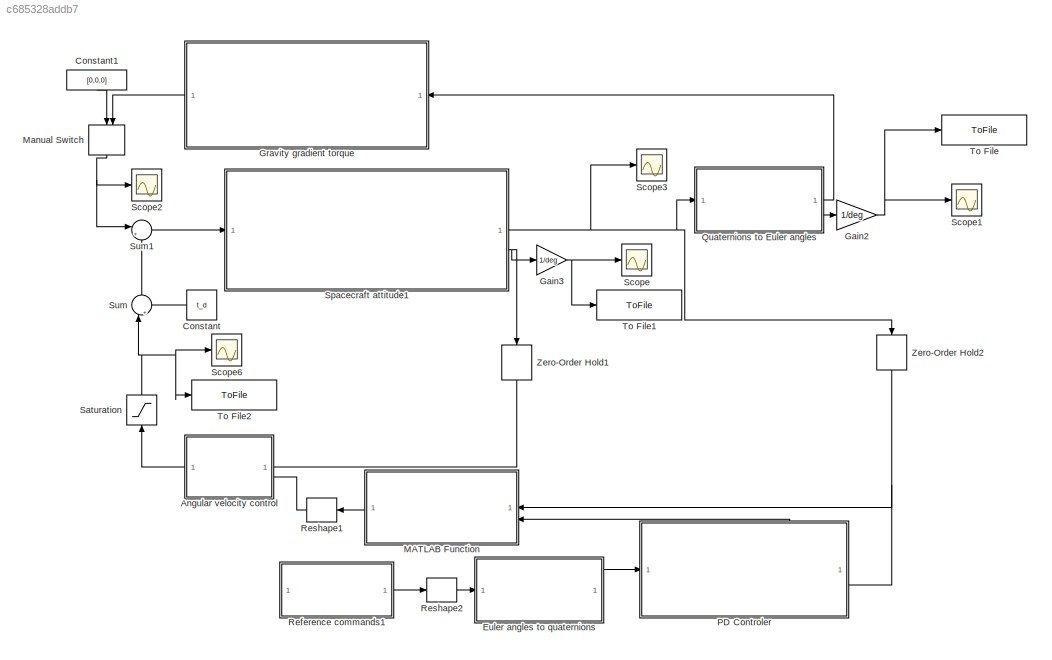
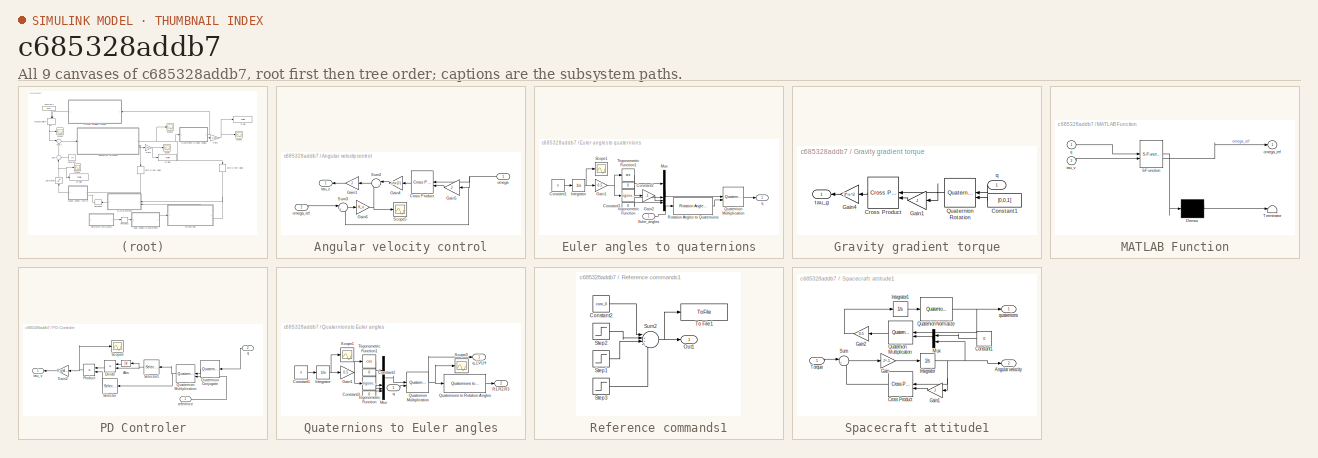
[diagram: thumbnail index - all 9 canvases of the model, root first then tree order]
MODEL slx_c685328addb7
KIND model
CONFIG AbsTol = 1e-6
CONFIG EnableMultiTasking = off
CONFIG FixedStep = 0.1
CONFIG MaxStep = auto
CONFIG MinStep = auto
CONFIG RelTol = 1e-6
CONFIG SampleTimeConstraint = Unconstrained
CONFIG SolverName = FixedStepAuto
CONFIG StartTime = 0.0
CONFIG StopTime = 1500
BLOCK [SubSystem] Angular velocity control
  PortSchema = {"entries":[{"content":{"sides":[{"content":{"connectorIds":["Out1"]},"type":"ConnectorPlacement.EquallySpacedRectSide","uuid":"1a2144e1-4a42-45d8-bf34-f3ce2743180d"},{"content":{"connectorIds":["In1","In2"],"side":"RIGHT"},"type":"ConnectorPlacement.EquallySpacedRectSide","uuid":"d3edec84-6c6c-4d61-a4e7-efc1d8cfdc8e"},{"content":{"side":"TOP"},"type":"ConnectorPlacement.EquallySpacedRectSide","uu...<+228ch>
BLOCK [Reference] Angular velocity control/Cross Product  REF=matrix_library/Cross Product
  LibrarySourceBlock = simulink/Matrix\nOperations/Cross Product
  SourceBlock = matrix_library/Cross Product
  SourceType = CrossProduct
BLOCK [Gain] Angular velocity control/Gain1
  Gain = J
  Multiplication = Matrix(K*u)
BLOCK [Gain] Angular velocity control/Gain4
  Gain = -inv(J)
  Multiplication = Matrix(K*u)
BLOCK [Gain] Angular velocity control/Gain5
  Gain = J
  Multiplication = Matrix(K*u)
BLOCK [Gain] Angular velocity control/Gain6
  Gain = K_o
  Multiplication = Matrix(K*u)
BLOCK [Scope] Angular velocity control/Scope5
  Floating = off
  NumInputPorts = 1
  ScopeSpecificationString = Simulink.scopes.TimeScopeBlockCfg('CurrentConfiguration', extmgr.ConfigurationSet(extmgr.Configuration('Core','General UI',true),extmgr.Configuration('Core','Source UI',true),extmgr.Configuration('Sources','WiredSimulink',true,'DataLoggingVariableName','ScopeData3'),extmgr.Configuration('Visuals','Time Domain',true,'SerializedDisplays',{struct('MinYLimReal','-0.05542','MaxYLimReal','0.05641','YLab...<+1867ch>
BLOCK [Sum] Angular velocity control/Sum2
  Inputs = |-+
BLOCK [Sum] Angular velocity control/Sum3
  Inputs = |+-
BLOCK [Inport] Angular velocity control/omega
BLOCK [Inport] Angular velocity control/omega_ref
  Port = 2
BLOCK [Outport] Angular velocity control/tau_c
BLOCK [Constant] Constant
  Value = t_d
BLOCK [Constant] Constant1
  NameLocation = right
  Value = [0,0,0]
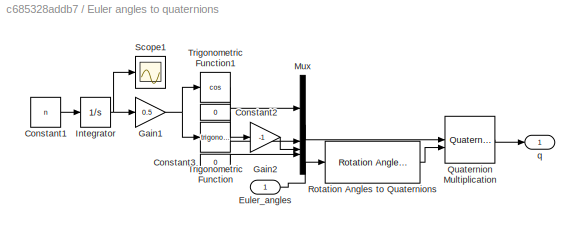
BLOCK [SubSystem] Euler angles to quaternions
BLOCK [Constant] Euler angles to quaternions/Constant1
  Value = n
BLOCK [Constant] Euler angles to quaternions/Constant2
  Value = 0
BLOCK [Constant] Euler angles to quaternions/Constant3
  Value = 0
BLOCK [Inport] Euler angles to quaternions/Euler_angles
BLOCK [Gain] Euler angles to quaternions/Gain1
  Gain = 0.5
  Multiplication = Matrix(K*u)
BLOCK [Gain] Euler angles to quaternions/Gain2
  Gain = -1
  Multiplication = Matrix(K*u)
BLOCK [Integrator] Euler angles to quaternions/Integrator
BLOCK [Mux] Euler angles to quaternions/Mux
  DisplayOption = bar
BLOCK [Reference] Euler angles to quaternions/Quaternion Multiplication  REF=aerolibutil/Quaternion
Multiplication
  SourceBlock = aerolibutil/Quaternion\nMultiplication
  SourceType = Quaternion Multiplication
BLOCK [Reference] Euler angles to quaternions/Rotation Angles to Quaternions  REF=sharedtransform/Rotation Angles to Quaternions
  AttributesFormatString = Rotation Order: %<rotationOrder>
  LibrarySourceBlock = aerolibtransform2/Rotation Angles to Quaternions
  SourceBlock = sharedtransform/Rotation Angles to Quaternions
  SourceType = Ang2Quat
BLOCK [Scope] Euler angles to quaternions/Scope1
  Floating = off
  NumInputPorts = 1
  ScopeSpecificationString = Simulink.scopes.TimeScopeBlockCfg('CurrentConfiguration', extmgr.ConfigurationSet(extmgr.Configuration('Core','General UI',true),extmgr.Configuration('Core','Source UI',true),extmgr.Configuration('Sources','WiredSimulink',true,'DataLoggingVariableName','ScopeData6'),extmgr.Configuration('Visuals','Time Domain',true,'SerializedDisplays',{struct('MinYLimReal','-0.19879','MaxYLimReal','1.78915','YLab...<+1783ch>
BLOCK [Trigonometry] Euler angles to quaternions/Trigonometric Function
BLOCK [Trigonometry] Euler angles to quaternions/Trigonometric Function1
  Operator = cos
BLOCK [Outport] Euler angles to quaternions/q
BLOCK [Gain] Gain2
  Gain = 1/deg
  Multiplication = Matrix(K*u)
BLOCK [Gain] Gain3
  Gain = 1/deg
  Multiplication = Matrix(K*u)
BLOCK [SubSystem] Gravity gradient torque
BLOCK [Constant] Gravity gradient torque/Constant1
  Value = [0,0,1]
BLOCK [Reference] Gravity gradient torque/Cross Product  REF=matrix_library/Cross Product
  LibrarySourceBlock = simulink/Matrix\nOperations/Cross Product
  SourceBlock = matrix_library/Cross Product
  SourceType = CrossProduct
BLOCK [Gain] Gravity gradient torque/Gain1
  Gain = J
  Multiplication = Matrix(K*u)
BLOCK [Gain] Gravity gradient torque/Gain4
  Gain = 3*n.^2
  Multiplication = Matrix(K*u)
BLOCK [Reference] Gravity gradient torque/Quaternion Rotation  REF=aerolibutil/Quaternion
Rotation
  SourceBlock = aerolibutil/Quaternion\nRotation
  SourceType = Quaternion Rotation
BLOCK [Inport] Gravity gradient torque/q
  NameLocation = top
BLOCK [Outport] Gravity gradient torque/tau_g
BLOCK [SubSystem] MATLAB Function
  ErrorFcn = Stateflow.Translate.translate
  PermitHierarchicalResolution = ExplicitOnly
  SFBlockType = MATLAB Function
  TreatAsAtomicUnit = on
BLOCK [Demux] MATLAB Function/ Demux 
  Outputs = 1
BLOCK [S-Function] MATLAB Function/ SFunction 
  EnableBusSupport = on
  FunctionName = sf_sfun
  PortCounts = [2 2]
  SFcnIsStateOwnerBlock = off
  SFunctionDeploymentMode = off
  Tag = Stateflow S-Function 2
BLOCK [Terminator] MATLAB Function/ Terminator 
BLOCK [Outport] MATLAB Function/omega_ref
BLOCK [Inport] MATLAB Function/q
BLOCK [Inport] MATLAB Function/tau_v
  Port = 2
BLOCK [ManualSwitch] Manual Switch
  CurrentSetting = 0
  NameLocation = left
BLOCK [SubSystem] PD Controler
  PortSchema = {"entries":[{"content":{"sides":[{"content":{"connectorIds":["Out1","In1"]},"type":"ConnectorPlacement.EquallySpacedRectSide","uuid":"abb5c05f-55a7-4b23-99fb-718b12e347b5"},{"content":{"connectorIds":["In2"],"side":"RIGHT"},"type":"ConnectorPlacement.EquallySpacedRectSide","uuid":"ecafc2a8-a004-41b4-9c63-c5f60123672e"},{"content":{"side":"TOP"},"type":"ConnectorPlacement.EquallySpacedRectSide","uu...<+228ch>
BLOCK [Abs] PD Controler/Abs
  SaturateOnIntegerOverflow = off
BLOCK [Product] PD Controler/Divide
  Inputs = */
BLOCK [Gain] PD Controler/Gain2
  Gain = K_q_ndi_tss
  Multiplication = Matrix(K*u)
BLOCK [Product] PD Controler/Product
BLOCK [Reference] PD Controler/Quaternion Conjugate  REF=aerolibutil/Quaternion
Conjugate
  SourceBlock = aerolibutil/Quaternion\nConjugate
  SourceType = Quaternion Conjugate
BLOCK [Reference] PD Controler/Quaternion Multiplication  REF=aerolibutil/Quaternion
Multiplication
  SourceBlock = aerolibutil/Quaternion\nMultiplication
  SourceType = Quaternion Multiplication
BLOCK [Scope] PD Controler/Scope6
  Floating = off
  NumInputPorts = 1
  ScopeSpecificationString = Simulink.scopes.TimeScopeBlockCfg('CurrentConfiguration', extmgr.ConfigurationSet(extmgr.Configuration('Core','General UI',true),extmgr.Configuration('Core','Source UI',true),extmgr.Configuration('Sources','WiredSimulink',true,'DataLoggingVariableName','ScopeData2'),extmgr.Configuration('Visuals','Time Domain',true,'SerializedDisplays',{struct('MinYLimReal','-1.21261','MaxYLimReal','1.2136','YLabe...<+1882ch>
BLOCK [Selector] PD Controler/Selector
  IndexOptions = Index vector (dialog)
  Indices = [2 3 4]
  InputPortWidth = 4
  NameLocation = top
  OutputSizes = 1
BLOCK [Selector] PD Controler/Selector1
  IndexOptions = Index vector (dialog)
  Indices = [1]
  InputPortWidth = 4
  NameLocation = top
  OutputSizes = 1
BLOCK [Inport] PD Controler/q
  Port = 2
BLOCK [Inport] PD Controler/reference
BLOCK [Outport] PD Controler/tau_v
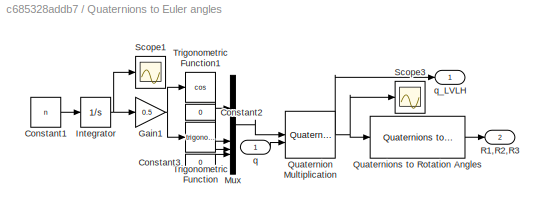
BLOCK [SubSystem] Quaternions to Euler angles
BLOCK [Constant] Quaternions to Euler angles/Constant1
  Value = n
BLOCK [Constant] Quaternions to Euler angles/Constant2
  Value = 0
BLOCK [Constant] Quaternions to Euler angles/Constant3
  Value = 0
BLOCK [Gain] Quaternions to Euler angles/Gain1
  Gain = 0.5
  Multiplication = Matrix(K*u)
BLOCK [Integrator] Quaternions to Euler angles/Integrator
BLOCK [Mux] Quaternions to Euler angles/Mux
  DisplayOption = bar
BLOCK [Reference] Quaternions to Euler angles/Quaternion Multiplication  REF=aerolibutil/Quaternion
Multiplication
  SourceBlock = aerolibutil/Quaternion\nMultiplication
  SourceType = Quaternion Multiplication
BLOCK [Reference] Quaternions to Euler angles/Quaternions to Rotation Angles  REF=sharedtransform/Quaternions to Rotation Angles
  AttributesFormatString = Rotation Order: %<rotationOrder>
  LibrarySourceBlock = aerolibtransform2/Quaternions to Rotation Angles
  SourceBlock = sharedtransform/Quaternions to Rotation Angles
  SourceType = Quat2Ang
BLOCK [Outport] Quaternions to Euler angles/R1,R2,R3
  Port = 2
BLOCK [Scope] Quaternions to Euler angles/Scope1
  Floating = off
  NumInputPorts = 1
  ScopeSpecificationString = Simulink.scopes.TimeScopeBlockCfg('CurrentConfiguration', extmgr.ConfigurationSet(extmgr.Configuration('Core','General UI',true),extmgr.Configuration('Core','Source UI',true),extmgr.Configuration('Sources','WiredSimulink',true,'DataLoggingVariableName','ScopeData6'),extmgr.Configuration('Visuals','Time Domain',true,'SerializedDisplays',{struct('MinYLimReal','-0.19879','MaxYLimReal','1.78915','YLab...<+1783ch>
BLOCK [Scope] Quaternions to Euler angles/Scope3
  Floating = off
  NumInputPorts = 1
  ScopeSpecificationString = Simulink.scopes.TimeScopeBlockCfg('CurrentConfiguration', extmgr.ConfigurationSet(extmgr.Configuration('Core','General UI',true),extmgr.Configuration('Core','Source UI',true),extmgr.Configuration('Sources','WiredSimulink',true,'DataLoggingVariableName','ScopeData3'),extmgr.Configuration('Visuals','Time Domain',true,'SerializedDisplays',{struct('MinYLimReal','-1.21447','MaxYLimReal','1.24605','YLab...<+1934ch>
BLOCK [Trigonometry] Quaternions to Euler angles/Trigonometric Function
BLOCK [Trigonometry] Quaternions to Euler angles/Trigonometric Function1
  Operator = cos
BLOCK [Inport] Quaternions to Euler angles/q
BLOCK [Outport] Quaternions to Euler angles/q_LVLH
BLOCK [SubSystem] Reference commands1
BLOCK [Constant] Reference commands1/Constant2
  Value = com_0
BLOCK [Outport] Reference commands1/Out1
BLOCK [Step] Reference commands1/Step1
  After = com_2 - com_1
  SampleTime = 0
  Time = 500.1
  VectorParams1D = off
BLOCK [Step] Reference commands1/Step2
  After = com_1 - com_0
  SampleTime = 0
  Time = 100
  VectorParams1D = off
BLOCK [Step] Reference commands1/Step3
  After = com_3 - com_2
  SampleTime = 0
  Time = 900.1
  VectorParams1D = off
BLOCK [Sum] Reference commands1/Sum2
  Inputs = |++++
BLOCK [ToFile] Reference commands1/To File1
  Filename = Reference_commands.mat
  MatrixName = values
  SaveFormat = Timeseries
BLOCK [Reshape] Reshape1
BLOCK [Reshape] Reshape2
BLOCK [Saturate] Saturation
  LowerLimit = -1.5
  NameLocation = right
  UpperLimit = 1.5
BLOCK [Scope] Scope
  Floating = off
  NumInputPorts = 1
  ScopeSpecificationString = Simulink.scopes.TimeScopeBlockCfg('CurrentConfiguration', extmgr.ConfigurationSet(extmgr.Configuration('Core','General UI',true),extmgr.Configuration('Core','Source UI',true),extmgr.Configuration('Sources','WiredSimulink',true),extmgr.Configuration('Visuals','Time Domain',true,'SerializedDisplays',{struct('MinYLimReal','-6.35339','MaxYLimReal','6.31068','YLabelReal','','MinYLimMag','0.00000','MaxY...<+1828ch>
BLOCK [Scope] Scope1
  Floating = off
  NumInputPorts = 1
  ScopeSpecificationString = Simulink.scopes.TimeScopeBlockCfg('CurrentConfiguration', extmgr.ConfigurationSet(extmgr.Configuration('Core','General UI',true),extmgr.Configuration('Core','Source UI',true),extmgr.Configuration('Sources','WiredSimulink',true,'DataLoggingVariableName','ScopeData1'),extmgr.Configuration('Visuals','Time Domain',true,'SerializedDisplays',{struct('MinYLimReal','-94.95569','MaxYLimReal','91.2651','YLa...<+1871ch>
BLOCK [Scope] Scope2
  Floating = off
  NumInputPorts = 1
  ScopeSpecificationString = Simulink.scopes.TimeScopeBlockCfg('CurrentConfiguration', extmgr.ConfigurationSet(extmgr.Configuration('Core','General UI',true),extmgr.Configuration('Core','Source UI',true),extmgr.Configuration('Sources','WiredSimulink',true,'DataLoggingVariableName','ScopeData1'),extmgr.Configuration('Visuals','Time Domain',true,'SerializedDisplays',{struct('MinYLimReal','-0.00026','MaxYLimReal','0.00026','YLab...<+1872ch>
BLOCK [Scope] Scope3
  Floating = off
  NumInputPorts = 1
  ScopeSpecificationString = Simulink.scopes.TimeScopeBlockCfg('CurrentConfiguration', extmgr.ConfigurationSet(extmgr.Configuration('Core','General UI',true),extmgr.Configuration('Core','Source UI',true),extmgr.Configuration('Sources','WiredSimulink',true,'DataLoggingVariableName','ScopeData1'),extmgr.Configuration('Visuals','Time Domain',true,'SerializedDisplays',{struct('MinYLimReal','-0.98653','MaxYLimReal','1.22068','YLab...<+1971ch>
BLOCK [Scope] Scope6
  Floating = off
  NumInputPorts = 1
  ScopeSpecificationString = Simulink.scopes.TimeScopeBlockCfg('CurrentConfiguration', extmgr.ConfigurationSet(extmgr.Configuration('Core','General UI',true),extmgr.Configuration('Core','Source UI',true),extmgr.Configuration('Sources','WiredSimulink',true,'DataLoggingVariableName','ScopeData4'),extmgr.Configuration('Visuals','Time Domain',true,'SerializedDisplays',{struct('MinYLimReal','-4.37238','MaxYLimReal','2.90916','YLab...<+1878ch>
BLOCK [SubSystem] Spacecraft attitude1
BLOCK [Outport] Spacecraft attitude1/Angular velocity
  Port = 2
BLOCK [Constant] Spacecraft attitude1/Constant1
  Value = 0
BLOCK [Reference] Spacecraft attitude1/Cross Product  REF=matrix_library/Cross Product
  LibrarySourceBlock = simulink/Matrix\nOperations/Cross Product
  SourceBlock = matrix_library/Cross Product
  SourceType = CrossProduct
BLOCK [Gain] Spacecraft attitude1/Gain
  Gain = J^-1
  Multiplication = Matrix(K*u)
BLOCK [Gain] Spacecraft attitude1/Gain1
  Gain = J
  Multiplication = Matrix(K*u)
BLOCK [Gain] Spacecraft attitude1/Gain2
  Gain = 0.5
  Multiplication = Matrix(K*u)
BLOCK [Integrator] Spacecraft attitude1/Integrator
  InitialCondition = w
BLOCK [Integrator] Spacecraft attitude1/Integrator1
  InitialCondition = init_q
BLOCK [Mux] Spacecraft attitude1/Mux
  DisplayOption = bar
  Inputs = 2
BLOCK [Reference] Spacecraft attitude1/Quaternion Multiplication  REF=aerolibutil/Quaternion
Multiplication
  SourceBlock = aerolibutil/Quaternion\nMultiplication
  SourceType = Quaternion Multiplication
BLOCK [Reference] Spacecraft attitude1/Quaternion Normalize  REF=sharedutil/Quaternion
Normalize
  LibrarySourceBlock = aerolibutil/Quaternion\nNormalize
  SourceBlock = sharedutil/Quaternion\nNormalize
  SourceType = Quaternion Normalize
BLOCK [Sum] Spacecraft attitude1/Sum
  Inputs = |+-
  NameLocation = top
BLOCK [Inport] Spacecraft attitude1/Torque
BLOCK [Outport] Spacecraft attitude1/quaternions
BLOCK [Sum] Sum
  Inputs = |++
  NameLocation = right
BLOCK [Sum] Sum1
  Inputs = |++
BLOCK [ToFile] To File
  Filename = Euler_angles.mat
  MatrixName = values
  SaveFormat = Timeseries
BLOCK [ToFile] To File1
  Filename = Angular_velocity.mat
  MatrixName = values
  SaveFormat = Timeseries
BLOCK [ToFile] To File2
  Filename = Torques.mat
  MatrixName = values
  SaveFormat = Timeseries
BLOCK [ZeroOrderHold] Zero-Order Hold1
  NameLocation = left
  SampleTime = 0.1
BLOCK [ZeroOrderHold] Zero-Order Hold2
  NameLocation = left
  SampleTime = 0.1
LINE Angular velocity control/Cross Product:1 -> Angular velocity control/Gain4:1
LINE Angular velocity control/Gain1:1 -> Angular velocity control/tau_c:1
LINE Angular velocity control/Gain4:1 -> Angular velocity control/Sum2:1
LINE Angular velocity control/Gain5:1 -> Angular velocity control/Cross Product:2
NET Angular velocity control/Gain6:1 -> Angular velocity control/Scope5:1, Angular velocity control/Sum2:2
LINE Angular velocity control/Sum2:1 -> Angular velocity control/Gain1:1
LINE Angular velocity control/Sum3:1 -> Angular velocity control/Gain6:1
NET Angular velocity control/omega:1 -> Angular velocity control/Cross Product:1, Angular velocity control/Gain5:1, Angular velocity control/Sum3:2
LINE Angular velocity control/omega_ref:1 -> Angular velocity control/Sum3:1
LINE Angular velocity control:1 -> Saturation:1
LINE Constant1:1 -> Manual Switch:1
LINE Constant:1 -> Sum:2
LINE Euler angles to quaternions/Constant1:1 -> Euler angles to quaternions/Integrator:1
LINE Euler angles to quaternions/Constant2:1 -> Euler angles to quaternions/Mux:2
LINE Euler angles to quaternions/Constant3:1 -> Euler angles to quaternions/Mux:4
LINE Euler angles to quaternions/Euler_angles:1 -> Euler angles to quaternions/Rotation Angles to Quaternions:1
NET Euler angles to quaternions/Gain1:1 -> Euler angles to quaternions/Trigonometric Function1:1, Euler angles to quaternions/Trigonometric Function:1
LINE Euler angles to quaternions/Gain2:1 -> Euler angles to quaternions/Mux:3
NET Euler angles to quaternions/Integrator:1 -> Euler angles to quaternions/Gain1:1, Euler angles to quaternions/Scope1:1
LINE Euler angles to quaternions/Mux:1 -> Euler angles to quaternions/Quaternion Multiplication:1
LINE Euler angles to quaternions/Quaternion Multiplication:1 -> Euler angles to quaternions/q:1
LINE Euler angles to quaternions/Rotation Angles to Quaternions:1 -> Euler angles to quaternions/Quaternion Multiplication:2
LINE Euler angles to quaternions/Trigonometric Function1:1 -> Euler angles to quaternions/Mux:1
LINE Euler angles to quaternions/Trigonometric Function:1 -> Euler angles to quaternions/Gain2:1
LINE Euler angles to quaternions:1 -> PD Controler:1
NET Gain2:1 -> Scope1:1, To File:1
NET Gain3:1 -> Scope:1, To File1:1
LINE Gravity gradient torque/Constant1:1 -> Gravity gradient torque/Quaternion Rotation:2
LINE Gravity gradient torque/Cross Product:1 -> Gravity gradient torque/Gain4:1
LINE Gravity gradient torque/Gain1:1 -> Gravity gradient torque/Cross Product:2
LINE Gravity gradient torque/Gain4:1 -> Gravity gradient torque/tau_g:1
NET Gravity gradient torque/Quaternion Rotation:1 -> Gravity gradient torque/Cross Product:1, Gravity gradient torque/Gain1:1
LINE Gravity gradient torque/q:1 -> Gravity gradient torque/Quaternion Rotation:1
LINE Gravity gradient torque:1 -> Manual Switch:2
LINE MATLAB Function:1 -> Reshape1:1
NET Manual Switch:1 -> Scope2:1, Sum1:1
LINE PD Controler/Abs:1 -> PD Controler/Divide:1
LINE PD Controler/Divide:1 -> PD Controler/Product:1
LINE PD Controler/Gain2:1 -> PD Controler/tau_v:1
NET PD Controler/Product:1 -> PD Controler/Gain2:1, PD Controler/Scope6:1
LINE PD Controler/Quaternion Conjugate:1 -> PD Controler/Quaternion Multiplication:1
NET PD Controler/Quaternion Multiplication:1 -> PD Controler/Selector1:1, PD Controler/Selector:1
NET PD Controler/Selector1:1 -> PD Controler/Abs:1, PD Controler/Divide:2
LINE PD Controler/Selector:1 -> PD Controler/Product:2
LINE PD Controler/q:1 -> PD Controler/Quaternion Conjugate:1
LINE PD Controler/reference:1 -> PD Controler/Quaternion Multiplication:2
LINE PD Controler:1 -> MATLAB Function:2
LINE Quaternions to Euler angles/Constant1:1 -> Quaternions to Euler angles/Integrator:1
LINE Quaternions to Euler angles/Constant2:1 -> Quaternions to Euler angles/Mux:2
LINE Quaternions to Euler angles/Constant3:1 -> Quaternions to Euler angles/Mux:4
NET Quaternions to Euler angles/Gain1:1 -> Quaternions to Euler angles/Trigonometric Function1:1, Quaternions to Euler angles/Trigonometric Function:1
NET Quaternions to Euler angles/Integrator:1 -> Quaternions to Euler angles/Gain1:1, Quaternions to Euler angles/Scope1:1
LINE Quaternions to Euler angles/Mux:1 -> Quaternions to Euler angles/Quaternion Multiplication:1
NET Quaternions to Euler angles/Quaternion Multiplication:1 -> Quaternions to Euler angles/Quaternions to Rotation Angles:1, Quaternions to Euler angles/Scope3:1, Quaternions to Euler angles/q_LVLH:1
LINE Quaternions to Euler angles/Quaternions to Rotation Angles:1 -> Quaternions to Euler angles/R1,R2,R3:1
LINE Quaternions to Euler angles/Trigonometric Function1:1 -> Quaternions to Euler angles/Mux:1
LINE Quaternions to Euler angles/Trigonometric Function:1 -> Quaternions to Euler angles/Mux:3
LINE Quaternions to Euler angles/q:1 -> Quaternions to Euler angles/Quaternion Multiplication:2
LINE Quaternions to Euler angles:1 -> Gravity gradient torque:1
LINE Quaternions to Euler angles:2 -> Gain2:1
LINE Reference commands1/Constant2:1 -> Reference commands1/Sum2:1
LINE Reference commands1/Step1:1 -> Reference commands1/Sum2:3
LINE Reference commands1/Step2:1 -> Reference commands1/Sum2:2
LINE Reference commands1/Step3:1 -> Reference commands1/Sum2:4
NET Reference commands1/Sum2:1 -> Reference commands1/Out1:1, Reference commands1/To File1:1
LINE Reference commands1:1 -> Reshape2:1
LINE Reshape1:1 -> Angular velocity control:2
LINE Reshape2:1 -> Euler angles to quaternions:1
NET Saturation:1 -> Scope6:1, Sum:1, To File2:1
LINE Spacecraft attitude1/Constant1:1 -> Spacecraft attitude1/Mux:1
LINE Spacecraft attitude1/Cross Product:1 -> Spacecraft attitude1/Sum:2
LINE Spacecraft attitude1/Gain1:1 -> Spacecraft attitude1/Cross Product:2
LINE Spacecraft attitude1/Gain2:1 -> Spacecraft attitude1/Integrator1:1
LINE Spacecraft attitude1/Gain:1 -> Spacecraft attitude1/Integrator:1
LINE Spacecraft attitude1/Integrator1:1 -> Spacecraft attitude1/Quaternion Normalize:1
NET Spacecraft attitude1/Integrator:1 -> Spacecraft attitude1/Angular velocity:1, Spacecraft attitude1/Cross Product:1, Spacecraft attitude1/Gain1:1, Spacecraft attitude1/Mux:2
LINE Spacecraft attitude1/Mux:1 -> Spacecraft attitude1/Quaternion Multiplication:2
LINE Spacecraft attitude1/Quaternion Multiplication:1 -> Spacecraft attitude1/Gain2:1
NET Spacecraft attitude1/Quaternion Normalize:1 -> Spacecraft attitude1/Quaternion Multiplication:1, Spacecraft attitude1/quaternions:1
LINE Spacecraft attitude1/Sum:1 -> Spacecraft attitude1/Gain:1
LINE Spacecraft attitude1/Torque:1 -> Spacecraft attitude1/Sum:1
NET Spacecraft attitude1:1 -> Quaternions to Euler angles:1, Scope3:1, Zero-Order Hold2:1
NET Spacecraft attitude1:2 -> Gain3:1, Zero-Order Hold1:1
LINE Sum1:1 -> Spacecraft attitude1:1
LINE Sum:1 -> Sum1:2
LINE Zero-Order Hold1:1 -> Angular velocity control:1
NET Zero-Order Hold2:1 -> MATLAB Function:1, PD Controler:2
note: NET lines group one-source signal fan-out (src -> all destinations, sorted); 1:1 wires keep LINE
CHART MATLAB Function states=1 transitions=1
  STATE_LABEL 'eML_blk_kernel()'
  STATE_LABEL 'SCRIPT:\nfunction omega_ref = NDI_TSS(q,tau_v)\nq0 = q(1)\nq_vec = q(2:4)\nM = 0.5* [\n    q0,-q_vec(3),q_vec(2);\n    q_vec(3),q0,-q_vec(1);\n    -q_vec(2),q_vec(1),q0\n]\nomega_ref = pinv(M)*tau_v;'
CHART  states=0 transitions=0
